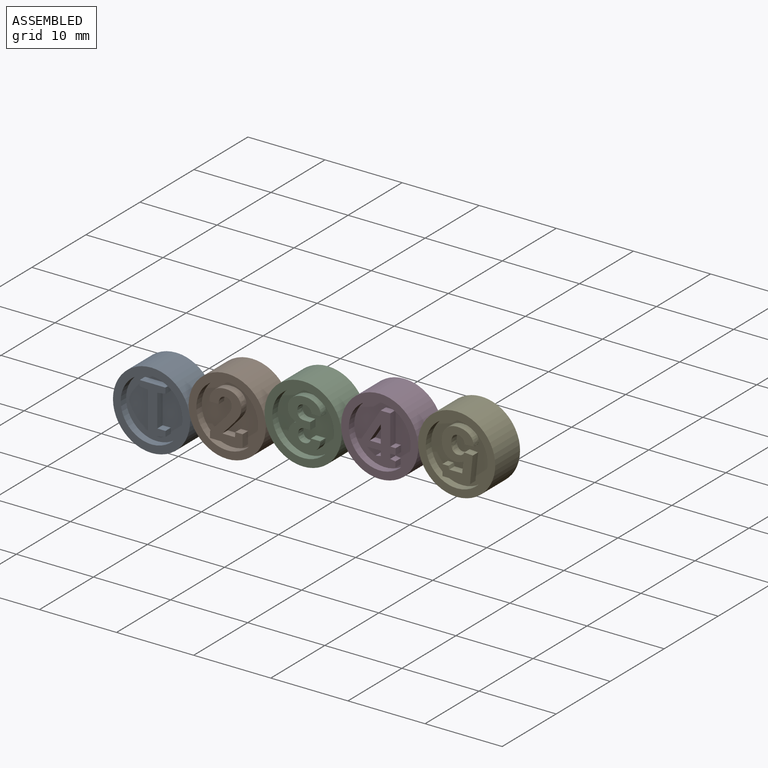
[diagram: assembled view]
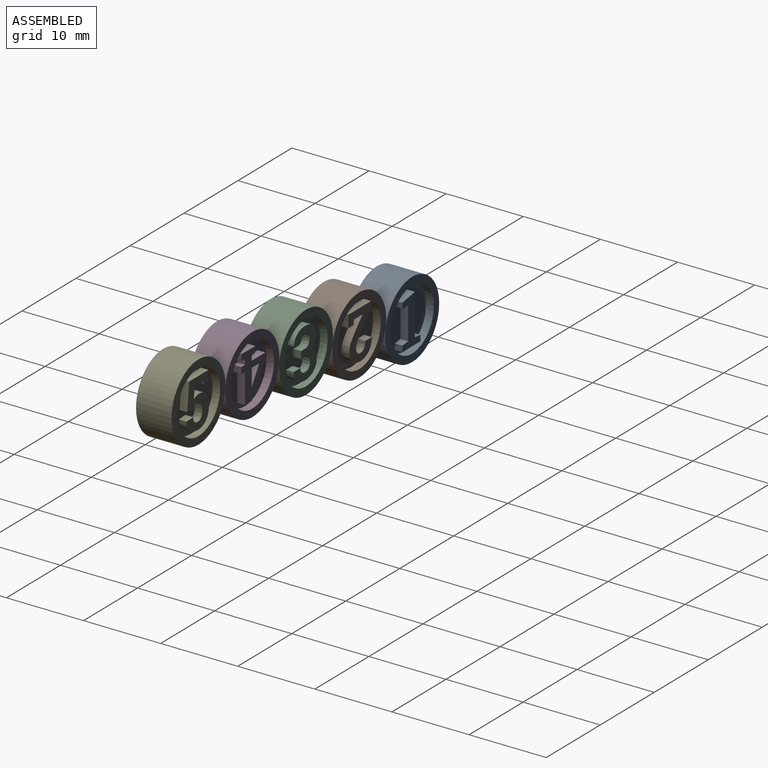
[diagram: assembled view, second angle]
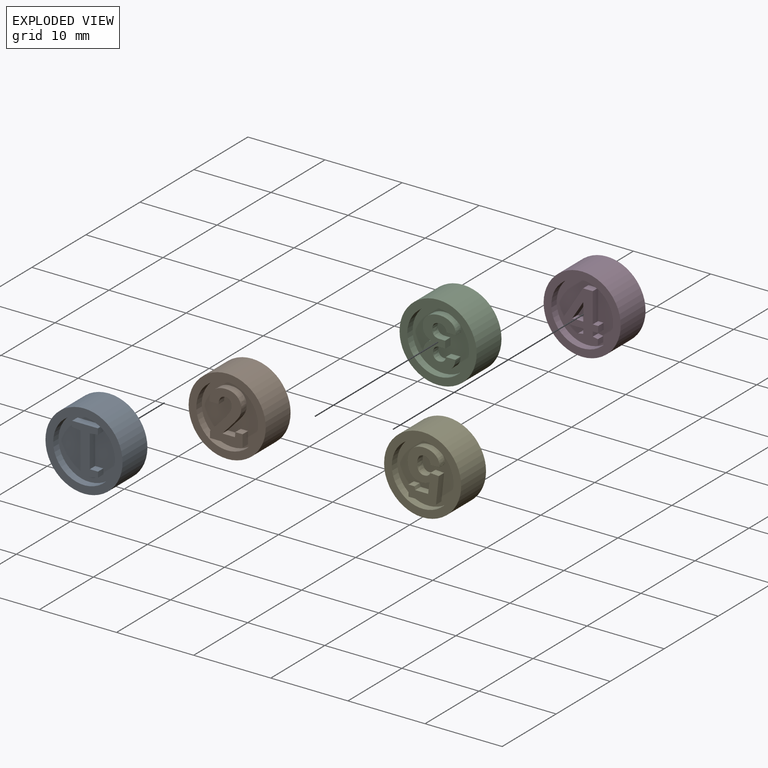
[diagram: exploded view]
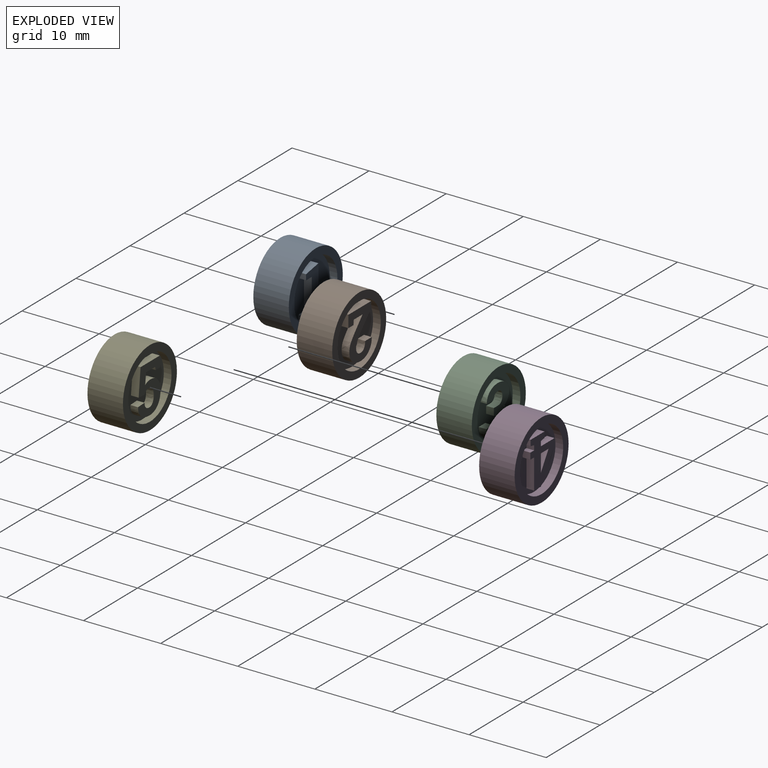
[diagram: exploded view, second angle]
ASSEMBLY  parts=5 mates=4
PART A: 29 faces, bbox 10x4.6x10 mm
  f0: plane 10x10mm, normal (0,1,0), area 28.3mm2, adj f1,f12
  f1: cylinder r=5mm len=10mm, axis (0,-1,0), area 144.5mm2, adj f0,f15
  f2: plane 3.33x1mm, normal (0,0,1), area 3.3mm2, adj f3,f11,f13,f14
  f3: plane 1x0.75mm, normal (-1,0,0), area 0.7mm2, adj f2,f4,f13,f14
  f4: plane 1.05x1mm, normal (-0.12,0,-0.99), area 1.1mm2, adj f3,f5,f13,f14
  f5: plane 4.2x1mm, normal (-1,0,0), area 4.2mm2, adj f4,f6,f13,f14
  f6: plane 1.06x1mm, normal (0,0,1), area 1.1mm2, adj f5,f7,f13,f14
  f7: plane 1x0.71mm, normal (-1,0,0), area 0.7mm2, adj f6,f8,f13,f14
  f8: plane 2.3x1mm, normal (-0.18,0,-0.98), area 2.3mm2, adj f7,f9,f13,f14
  f9: plane 5.33x1mm, normal (1,0,0), area 5.3mm2, adj f8,f10,f13,f14
  f10: plane 1.05x1mm, normal (0.12,0,-0.99), area 1.1mm2, adj f9,f11,f13,f14
  f11: plane 1x0.75mm, normal (1,0,0), area 0.7mm2, adj f2,f10,f13,f14
  f12: cylinder r=4mm len=8mm, axis (0,1,0), area 25.1mm2, adj f0,f13
  f13: plane 8x8mm, normal (0,1,0), area 40.2mm2, adj f2,f3,f4,f5,f6,f7,f8,f9
  f14: plane 6.2x3.35mm, normal (0,1,0), area 10.1mm2, adj f2,f3,f4,f5,f6,f7,f8,f9
  f15: plane 10x10mm, normal (0,-1,0), area 28.3mm2, adj f1,f26
  f16: plane 3.33x1mm, normal (0,0,-1), area 3.3mm2, adj f17,f25,f27,f28
  f17: plane 1x0.75mm, normal (-1,0,0), area 0.7mm2, adj f16,f18,f27,f28
  f18: plane 1.05x1mm, normal (-0.12,0,0.99), area 1.1mm2, adj f17,f19,f27,f28
  f19: plane 4.2x1mm, normal (-1,0,0), area 4.2mm2, adj f18,f20,f27,f28
  f20: plane 1.06x1mm, normal (0,0,-1), area 1.1mm2, adj f19,f21,f27,f28
  f21: plane 1x0.71mm, normal (-1,0,0), area 0.7mm2, adj f20,f22,f27,f28
  f22: plane 2.3x1mm, normal (-0.18,0,0.98), area 2.3mm2, adj f21,f23,f27,f28
  f23: plane 5.33x1mm, normal (1,0,0), area 5.3mm2, adj f22,f24,f27,f28
  f24: plane 1.05x1mm, normal (0.12,0,0.99), area 1.1mm2, adj f23,f25,f27,f28
  f25: plane 1x0.75mm, normal (1,0,0), area 0.7mm2, adj f16,f24,f27,f28
  f26: cylinder r=4mm len=8mm, axis (0,-1,0), area 25.1mm2, adj f15,f27
  f27: plane 8x8mm, normal (0,-1,0), area 40.2mm2, adj f16,f17,f18,f19,f20,f21,f22,f23
  f28: plane 6.2x3.35mm, normal (0,-1,0), area 10.1mm2, adj f16,f17,f18,f19,f20,f21,f22,f23
PART B: 55 faces, bbox 10x4.6x10 mm
  f0: plane 10x10mm, normal (0,1,0), area 28.3mm2, adj f1,f25
  f1: cylinder r=5mm len=10mm, axis (0,-1,0), area 144.5mm2, adj f0,f28
  f2: plane 1.57x1mm, normal (1,0,0), area 1.6mm2, adj f3,f24,f26,f27
  f3: plane 4.23x1mm, normal (0,0,1), area 4.2mm2, adj f2,f4,f26,f27
  f4: plane 1x0.81mm, normal (-1,0,0), area 0.8mm2, adj f3,f5,f26,f27
  f5: plane 2.15x2.01mm, normal (-0.73,0,-0.68), area 2.9mm2, adj f4,f6,f26,f27
  f6: extruded ~1x0.84mm, area 1mm2, adj f5,f7,f26,f27
  f7: extruded ~1x0.64mm, area 0.7mm2, adj f6,f8,f26,f27
  f8: extruded ~1x0.64mm, area 0.7mm2, adj f7,f9,f26,f27
  f9: extruded ~1x0.6mm, area 0.7mm2, adj f8,f10,f26,f27
  f10: extruded ~1x0.65mm, area 0.7mm2, adj f9,f11,f26,f27
  f11: extruded ~1x0.78mm, area 0.8mm2, adj f10,f12,f26,f27
  f12: plane 1.21x1mm, normal (0,0,1), area 1.2mm2, adj f11,f13,f26,f27
  f13: plane 1x0.03mm, normal (-0.94,0,0.35), area 0mm2, adj f12,f14,f26,f27
  f14: extruded ~1.42x1mm, area 1.6mm2, adj f13,f15,f26,f27
  f15: extruded ~1.54x1mm, area 1.7mm2, adj f14,f16,f26,f27
  f16: extruded ~1.51x1mm, area 1.6mm2, adj f15,f17,f26,f27
  f17: extruded ~1.33x1mm, area 1.5mm2, adj f16,f18,f26,f27
  f18: extruded ~1.04x1mm, area 1.1mm2, adj f17,f19,f26,f27
  f19: extruded ~1.24x1.02mm, area 1.6mm2, adj f18,f20,f26,f27
  f20: plane 1.2x1.1mm, normal (0.74,0,0.68), area 1.6mm2, adj f19,f21,f26,f27
  f21: plane 1x0.02mm, normal (0.94,0,-0.35), area 0mm2, adj f20,f22,f26,f27
  f22: plane 1.61x1mm, normal (0,0,-1), area 1.6mm2, adj f21,f23,f26,f27
  f23: plane 1x0.61mm, normal (-1,0,-0.08), area 0.6mm2, adj f22,f24,f26,f27
  f24: plane 1x0.94mm, normal (0,0,-1), area 0.9mm2, adj f2,f23,f26,f27
  f25: cylinder r=4mm len=8mm, axis (0,1,0), area 25.1mm2, adj f0,f26
  f26: plane 8x8mm, normal (0,1,0), area 35.6mm2, adj f2,f3,f4,f5,f6,f7,f8,f9
  f27: plane 6.29x4.35mm, normal (0,1,0), area 14.7mm2, adj f2,f3,f4,f5,f6,f7,f8,f9
  f28: plane 10x10mm, normal (0,-1,0), area 28.3mm2, adj f1,f52
  f29: plane 1.57x1mm, normal (1,0,0), area 1.6mm2, adj f30,f51,f53,f54
  f30: plane 4.23x1mm, normal (0,0,-1), area 4.2mm2, adj f29,f31,f53,f54
  f31: plane 1x0.81mm, normal (-1,0,0), area 0.8mm2, adj f30,f32,f53,f54
  f32: plane 2.15x2.01mm, normal (-0.73,0,0.68), area 2.9mm2, adj f31,f33,f53,f54
  f33: extruded ~1x0.84mm, area 1mm2, adj f32,f34,f53,f54
  f34: extruded ~1x0.64mm, area 0.7mm2, adj f33,f35,f53,f54
  f35: extruded ~1x0.64mm, area 0.7mm2, adj f34,f36,f53,f54
  f36: extruded ~1x0.6mm, area 0.7mm2, adj f35,f37,f53,f54
  f37: extruded ~1x0.65mm, area 0.7mm2, adj f36,f38,f53,f54
  f38: extruded ~1x0.78mm, area 0.8mm2, adj f37,f39,f53,f54
  f39: plane 1.21x1mm, normal (0,0,-1), area 1.2mm2, adj f38,f40,f53,f54
  f40: plane 1x0.03mm, normal (-0.94,0,-0.35), area 0mm2, adj f39,f41,f53,f54
  f41: extruded ~1.42x1mm, area 1.6mm2, adj f40,f42,f53,f54
  f42: extruded ~1.54x1mm, area 1.7mm2, adj f41,f43,f53,f54
  f43: extruded ~1.51x1mm, area 1.6mm2, adj f42,f44,f53,f54
  f44: extruded ~1.33x1mm, area 1.5mm2, adj f43,f45,f53,f54
  f45: extruded ~1.04x1mm, area 1.1mm2, adj f44,f46,f53,f54
  f46: extruded ~1.24x1.02mm, area 1.6mm2, adj f45,f47,f53,f54
  f47: plane 1.2x1.1mm, normal (0.74,0,-0.68), area 1.6mm2, adj f46,f48,f53,f54
  f48: plane 1x0.02mm, normal (0.94,0,0.35), area 0mm2, adj f47,f49,f53,f54
  f49: plane 1.61x1mm, normal (0,0,1), area 1.6mm2, adj f48,f50,f53,f54
  f50: plane 1x0.61mm, normal (-1,0,0.08), area 0.6mm2, adj f49,f51,f53,f54
  f51: plane 1x0.94mm, normal (0,0,1), area 0.9mm2, adj f29,f50,f53,f54
  f52: cylinder r=4mm len=8mm, axis (0,-1,0), area 25.1mm2, adj f28,f53
  f53: plane 8x8mm, normal (0,-1,0), area 35.6mm2, adj f29,f30,f31,f32,f33,f34,f35,f36
  f54: plane 6.29x4.35mm, normal (0,-1,0), area 14.7mm2, adj f29,f30,f31,f32,f33,f34,f35,f36
PART C: 71 faces, bbox 10x4.6x10 mm
  f0: plane 10x10mm, normal (0,-1,0), area 28.3mm2, adj f1,f33
  f1: cylinder r=5mm len=10mm, axis (0,1,0), area 144.5mm2, adj f0,f36
  f2: plane 1x0.7mm, normal (0,0,-1), area 0.7mm2, adj f3,f32,f34,f35
  f3: plane 1x0.93mm, normal (-1,0,0), area 0.9mm2, adj f2,f4,f34,f35
  f4: plane 1x0.7mm, normal (0,0,1), area 0.7mm2, adj f3,f5,f34,f35
  f5: extruded ~1x0.66mm, area 0.7mm2, adj f4,f6,f34,f35
  f6: extruded ~1x0.64mm, area 0.7mm2, adj f5,f7,f34,f35
  f7: extruded ~1x0.6mm, area 0.7mm2, adj f6,f8,f34,f35
  f8: extruded ~1x0.62mm, area 0.7mm2, adj f7,f9,f34,f35
  f9: extruded ~1x0.59mm, area 0.6mm2, adj f8,f10,f34,f35
  f10: extruded ~1x0.54mm, area 0.6mm2, adj f9,f11,f34,f35
  f11: plane 1.2x1mm, normal (0,0,-1), area 1.2mm2, adj f10,f12,f34,f35
  f12: plane 1x0.03mm, normal (-0.94,0,-0.35), area 0mm2, adj f11,f13,f34,f35
  f13: extruded ~1.2x1mm, area 1.4mm2, adj f12,f14,f34,f35
  f14: extruded ~1.45x1mm, area 1.6mm2, adj f13,f15,f34,f35
  f15: extruded ~1.54x1mm, area 1.6mm2, adj f14,f16,f34,f35
  f16: extruded ~1.31x1mm, area 1.5mm2, adj f15,f17,f34,f35
  f17: extruded ~1x0.77mm, area 0.8mm2, adj f16,f18,f34,f35
  f18: extruded ~1x0.7mm, area 0.9mm2, adj f17,f19,f34,f35
  f19: extruded ~1x0.79mm, area 1mm2, adj f18,f20,f34,f35
  f20: extruded ~1x0.88mm, area 0.9mm2, adj f19,f21,f34,f35
  f21: extruded ~1.34x1mm, area 1.5mm2, adj f20,f22,f34,f35
  f22: extruded ~1.59x1mm, area 1.7mm2, adj f21,f23,f34,f35
  f23: extruded ~1.48x1mm, area 1.6mm2, adj f22,f24,f34,f35
  f24: extruded ~1.29x1mm, area 1.5mm2, adj f23,f25,f34,f35
  f25: plane 1x0.03mm, normal (-0.95,0,0.3), area 0mm2, adj f24,f26,f34,f35
  f26: plane 1.21x1mm, normal (0,0,1), area 1.2mm2, adj f25,f27,f34,f35
  f27: extruded ~1x0.59mm, area 0.7mm2, adj f26,f28,f34,f35
  f28: extruded ~1x0.65mm, area 0.7mm2, adj f27,f29,f34,f35
  f29: extruded ~1x0.68mm, area 0.7mm2, adj f28,f30,f34,f35
  f30: extruded ~1x0.65mm, area 0.7mm2, adj f29,f31,f34,f35
  f31: extruded ~1x0.72mm, area 0.8mm2, adj f30,f32,f34,f35
  f32: extruded ~1x0.72mm, area 0.8mm2, adj f2,f31,f34,f35
  f33: cylinder r=4mm len=8mm, axis (0,-1,0), area 25.1mm2, adj f0,f34
  f34: plane 8x8mm, normal (0,-1,0), area 36mm2, adj f2,f3,f4,f5,f6,f7,f8,f9
  f35: plane 6.38x4.31mm, normal (0,-1,0), area 14.2mm2, adj f2,f3,f4,f5,f6,f7,f8,f9
  f36: plane 10x10mm, normal (0,1,0), area 28.3mm2, adj f1,f68
  f37: plane 1x0.7mm, normal (0,0,1), area 0.7mm2, adj f38,f67,f69,f70
  f38: plane 1x0.93mm, normal (-1,0,0), area 0.9mm2, adj f37,f39,f69,f70
  f39: plane 1x0.7mm, normal (0,0,-1), area 0.7mm2, adj f38,f40,f69,f70
  f40: extruded ~1x0.66mm, area 0.7mm2, adj f39,f41,f69,f70
  f41: extruded ~1x0.64mm, area 0.7mm2, adj f40,f42,f69,f70
  f42: extruded ~1x0.6mm, area 0.7mm2, adj f41,f43,f69,f70
  f43: extruded ~1x0.62mm, area 0.7mm2, adj f42,f44,f69,f70
  f44: extruded ~1x0.59mm, area 0.6mm2, adj f43,f45,f69,f70
  f45: extruded ~1x0.54mm, area 0.6mm2, adj f44,f46,f69,f70
  f46: plane 1.2x1mm, normal (0,0,1), area 1.2mm2, adj f45,f47,f69,f70
  f47: plane 1x0.03mm, normal (-0.94,0,0.35), area 0mm2, adj f46,f48,f69,f70
  f48: extruded ~1.2x1mm, area 1.4mm2, adj f47,f49,f69,f70
  f49: extruded ~1.45x1mm, area 1.6mm2, adj f48,f50,f69,f70
  f50: extruded ~1.54x1mm, area 1.6mm2, adj f49,f51,f69,f70
  f51: extruded ~1.31x1mm, area 1.5mm2, adj f50,f52,f69,f70
  f52: extruded ~1x0.77mm, area 0.8mm2, adj f51,f53,f69,f70
  f53: extruded ~1x0.7mm, area 0.9mm2, adj f52,f54,f69,f70
  f54: extruded ~1x0.79mm, area 1mm2, adj f53,f55,f69,f70
  f55: extruded ~1x0.88mm, area 0.9mm2, adj f54,f56,f69,f70
  f56: extruded ~1.34x1mm, area 1.5mm2, adj f55,f57,f69,f70
  f57: extruded ~1.59x1mm, area 1.7mm2, adj f56,f58,f69,f70
  f58: extruded ~1.48x1mm, area 1.6mm2, adj f57,f59,f69,f70
  f59: extruded ~1.29x1mm, area 1.5mm2, adj f58,f60,f69,f70
  f60: plane 1x0.03mm, normal (-0.95,0,-0.3), area 0mm2, adj f59,f61,f69,f70
  f61: plane 1.21x1mm, normal (0,0,-1), area 1.2mm2, adj f60,f62,f69,f70
  f62: extruded ~1x0.59mm, area 0.7mm2, adj f61,f63,f69,f70
  f63: extruded ~1x0.65mm, area 0.7mm2, adj f62,f64,f69,f70
  f64: extruded ~1x0.68mm, area 0.7mm2, adj f63,f65,f69,f70
  f65: extruded ~1x0.65mm, area 0.7mm2, adj f64,f66,f69,f70
  f66: extruded ~1x0.72mm, area 0.8mm2, adj f65,f67,f69,f70
  f67: extruded ~1x0.72mm, area 0.8mm2, adj f37,f66,f69,f70
  f68: cylinder r=4mm len=8mm, axis (0,1,0), area 25.1mm2, adj f36,f69
  f69: plane 8x8mm, normal (0,1,0), area 36mm2, adj f37,f38,f39,f40,f41,f42,f43,f44
  f70: plane 6.38x4.31mm, normal (0,1,0), area 14.2mm2, adj f37,f38,f39,f40,f41,f42,f43,f44
PART D: 51 faces, bbox 10x4.6x10 mm
  f0: plane 10x10mm, normal (0,1,0), area 28.3mm2, adj f1,f17
  f1: cylinder r=5mm len=10mm, axis (0,-1,0), area 144.5mm2, adj f0,f26
  f2: plane 1.25x1mm, normal (0,0,-1), area 1.3mm2, adj f3,f16,f18,f19
  f3: plane 3.89x1mm, normal (1,0,0), area 3.9mm2, adj f2,f4,f18,f19
  f4: plane 1x0.7mm, normal (0,0,-1), area 0.7mm2, adj f3,f5,f18,f19
  f5: plane 1x0.83mm, normal (1,0,0), area 0.8mm2, adj f4,f6,f18,f19
  f6: plane 1x0.7mm, normal (0,0,1), area 0.7mm2, adj f5,f7,f18,f19
  f7: plane 1x0.61mm, normal (1,0,0), area 0.6mm2, adj f6,f8,f18,f19
  f8: plane 1x0.66mm, normal (0.19,0,-0.98), area 0.7mm2, adj f7,f9,f18,f19
  f9: plane 1x0.75mm, normal (1,0,0), area 0.7mm2, adj f8,f10,f18,f19
  f10: plane 2.56x1mm, normal (0,0,1), area 2.6mm2, adj f9,f11,f18,f19
  f11: plane 1x0.75mm, normal (-1,0,0), area 0.7mm2, adj f10,f12,f18,f19
  f12: plane 1x0.67mm, normal (-0.19,0,-0.98), area 0.7mm2, adj f11,f13,f18,f19
  f13: plane 1x0.61mm, normal (-1,0,0), area 0.6mm2, adj f12,f14,f18,f19
  f14: plane 2.53x1mm, normal (0,0,1), area 2.5mm2, adj f13,f15,f18,f19
  f15: plane 1x0.61mm, normal (-1,0,0.1), area 0.6mm2, adj f14,f16,f18,f19
  f16: plane 4.11x2.58mm, normal (-0.85,0,-0.53), area 4.8mm2, adj f2,f15,f18,f19
  f17: cylinder r=4mm len=8mm, axis (0,1,0), area 25.1mm2, adj f0,f18
  f18: plane 8x8mm, normal (0,1,0), area 34mm2, adj f2,f3,f4,f5,f6,f7,f8,f9
  f19: plane 6.2x4.53mm, normal (0,1,0), area 14.6mm2, adj f2,f3,f4,f5,f6,f7,f8,f9
  f20: plane 1x0.18mm, normal (0.87,0,0.49), area 0.2mm2, adj f19,f21,f24,f25
  f21: plane 2.06x1.3mm, normal (0.85,0,0.53), area 2.4mm2, adj f19,f20,f22,f25
  f22: plane 1.43x1mm, normal (0,0,-1), area 1.4mm2, adj f19,f21,f23,f25
  f23: plane 2.23x1mm, normal (-1,0,0), area 2.2mm2, adj f19,f22,f24,f25
  f24: plane 1x0.03mm, normal (-0.35,0,0.94), area 0mm2, adj f19,f20,f23,f25
  f25: plane 2.24x1.43mm, normal (0,1,0), area 1.6mm2, adj f20,f21,f22,f23,f24
  f26: plane 10x10mm, normal (0,-1,0), area 28.3mm2, adj f1,f42
  f27: plane 1.25x1mm, normal (0,0,1), area 1.3mm2, adj f28,f41,f43,f44
  f28: plane 3.89x1mm, normal (1,0,0), area 3.9mm2, adj f27,f29,f43,f44
  f29: plane 1x0.7mm, normal (0,0,1), area 0.7mm2, adj f28,f30,f43,f44
  f30: plane 1x0.83mm, normal (1,0,0), area 0.8mm2, adj f29,f31,f43,f44
  f31: plane 1x0.7mm, normal (0,0,-1), area 0.7mm2, adj f30,f32,f43,f44
  f32: plane 1x0.61mm, normal (1,0,0), area 0.6mm2, adj f31,f33,f43,f44
  f33: plane 1x0.66mm, normal (0.19,0,0.98), area 0.7mm2, adj f32,f34,f43,f44
  f34: plane 1x0.75mm, normal (1,0,0), area 0.7mm2, adj f33,f35,f43,f44
  f35: plane 2.56x1mm, normal (0,0,-1), area 2.6mm2, adj f34,f36,f43,f44
  f36: plane 1x0.75mm, normal (-1,0,0), area 0.7mm2, adj f35,f37,f43,f44
  f37: plane 1x0.67mm, normal (-0.19,0,0.98), area 0.7mm2, adj f36,f38,f43,f44
  f38: plane 1x0.61mm, normal (-1,0,0), area 0.6mm2, adj f37,f39,f43,f44
  f39: plane 2.53x1mm, normal (0,0,-1), area 2.5mm2, adj f38,f40,f43,f44
  f40: plane 1x0.61mm, normal (-1,0,-0.1), area 0.6mm2, adj f39,f41,f43,f44
  f41: plane 4.11x2.58mm, normal (-0.85,0,0.53), area 4.8mm2, adj f27,f40,f43,f44
  f42: cylinder r=4mm len=8mm, axis (0,-1,0), area 25.1mm2, adj f26,f43
  f43: plane 8x8mm, normal (0,-1,0), area 34mm2, adj f27,f28,f29,f30,f31,f32,f33,f34
  f44: plane 6.2x4.53mm, normal (0,-1,0), area 14.6mm2, adj f27,f28,f29,f30,f31,f32,f33,f34
  f45: plane 1x0.18mm, normal (0.87,0,-0.49), area 0.2mm2, adj f44,f46,f49,f50
  f46: plane 2.06x1.3mm, normal (0.85,0,-0.53), area 2.4mm2, adj f44,f45,f47,f50
  f47: plane 1.43x1mm, normal (0,0,1), area 1.4mm2, adj f44,f46,f48,f50
  f48: plane 2.23x1mm, normal (-1,0,0), area 2.2mm2, adj f44,f47,f49,f50
  f49: plane 1x0.03mm, normal (-0.35,0,-0.94), area 0mm2, adj f44,f45,f48,f50
  f50: plane 2.24x1.43mm, normal (0,-1,0), area 1.6mm2, adj f45,f46,f47,f48,f49
PART E: 61 faces, bbox 10x4.6x10 mm
  f0: plane 10x10mm, normal (0,1,0), area 28.3mm2, adj f1,f28
  f1: cylinder r=5mm len=10mm, axis (0,-1,0), area 144.5mm2, adj f0,f31
  f2: plane 1.41x1mm, normal (1,0,0), area 1.4mm2, adj f3,f27,f29,f30
  f3: plane 1x0.77mm, normal (0,0,1), area 0.8mm2, adj f2,f4,f29,f30
  f4: plane 1x0.42mm, normal (-0.97,0,0.26), area 0.4mm2, adj f3,f5,f29,f30
  f5: plane 1.67x1mm, normal (0,0,1), area 1.7mm2, adj f4,f6,f29,f30
  f6: plane 1.43x1mm, normal (0.99,0,0.12), area 1.4mm2, adj f5,f7,f29,f30
  f7: extruded ~1x0.42mm, area 0.5mm2, adj f6,f8,f29,f30
  f8: extruded ~1x0.54mm, area 0.5mm2, adj f7,f9,f29,f30
  f9: extruded ~1.38x1mm, area 1.5mm2, adj f8,f10,f29,f30
  f10: extruded ~1.54x1mm, area 1.7mm2, adj f9,f11,f29,f30
  f11: extruded ~1.49x1mm, area 1.6mm2, adj f10,f12,f29,f30
  f12: extruded ~1.55x1mm, area 1.7mm2, adj f11,f13,f29,f30
  f13: extruded ~1.46x1mm, area 1.6mm2, adj f12,f14,f29,f30
  f14: extruded ~1.28x1mm, area 1.5mm2, adj f13,f15,f29,f30
  f15: plane 1x0.02mm, normal (-0.91,0,-0.42), area 0mm2, adj f14,f16,f29,f30
  f16: plane 1.19x1mm, normal (-0.05,0,-1), area 1.2mm2, adj f15,f17,f29,f30
  f17: extruded ~1x0.65mm, area 0.7mm2, adj f16,f18,f29,f30
  f18: extruded ~1x0.61mm, area 0.7mm2, adj f17,f19,f29,f30
  f19: extruded ~1x0.64mm, area 0.7mm2, adj f18,f20,f29,f30
  f20: extruded ~1x0.8mm, area 0.8mm2, adj f19,f21,f29,f30
  f21: extruded ~1x0.86mm, area 0.9mm2, adj f20,f22,f29,f30
  f22: extruded ~1x0.66mm, area 0.8mm2, adj f21,f23,f29,f30
  f23: extruded ~1x0.54mm, area 0.6mm2, adj f22,f24,f29,f30
  f24: extruded ~1x0.36mm, area 0.5mm2, adj f23,f25,f29,f30
  f25: plane 1.1x1mm, normal (-0.07,0,1), area 1.1mm2, adj f24,f26,f29,f30
  f26: plane 3.45x1mm, normal (-0.99,0,-0.1), area 3.5mm2, adj f25,f27,f29,f30
  f27: plane 3.57x1mm, normal (0,0,-1), area 3.6mm2, adj f2,f26,f29,f30
  f28: cylinder r=4mm len=8mm, axis (0,1,0), area 25.1mm2, adj f0,f29
  f29: plane 8x8mm, normal (0,1,0), area 34.9mm2, adj f2,f3,f4,f5,f6,f7,f8,f9
  f30: plane 6.29x4.16mm, normal (0,1,0), area 15.4mm2, adj f2,f3,f4,f5,f6,f7,f8,f9
  f31: plane 10x10mm, normal (0,-1,0), area 28.3mm2, adj f1,f58
  f32: plane 1.41x1mm, normal (1,0,0), area 1.4mm2, adj f33,f57,f59,f60
  f33: plane 1x0.77mm, normal (0,0,-1), area 0.8mm2, adj f32,f34,f59,f60
  f34: plane 1x0.42mm, normal (-0.97,0,-0.26), area 0.4mm2, adj f33,f35,f59,f60
  f35: plane 1.67x1mm, normal (0,0,-1), area 1.7mm2, adj f34,f36,f59,f60
  f36: plane 1.43x1mm, normal (0.99,0,-0.12), area 1.4mm2, adj f35,f37,f59,f60
  f37: extruded ~1x0.42mm, area 0.5mm2, adj f36,f38,f59,f60
  f38: extruded ~1x0.54mm, area 0.5mm2, adj f37,f39,f59,f60
  f39: extruded ~1.38x1mm, area 1.5mm2, adj f38,f40,f59,f60
  f40: extruded ~1.54x1mm, area 1.7mm2, adj f39,f41,f59,f60
  f41: extruded ~1.49x1mm, area 1.6mm2, adj f40,f42,f59,f60
  f42: extruded ~1.55x1mm, area 1.7mm2, adj f41,f43,f59,f60
  f43: extruded ~1.46x1mm, area 1.6mm2, adj f42,f44,f59,f60
  f44: extruded ~1.28x1mm, area 1.5mm2, adj f43,f45,f59,f60
  f45: plane 1x0.02mm, normal (-0.91,0,0.42), area 0mm2, adj f44,f46,f59,f60
  f46: plane 1.19x1mm, normal (-0.05,0,1), area 1.2mm2, adj f45,f47,f59,f60
  f47: extruded ~1x0.65mm, area 0.7mm2, adj f46,f48,f59,f60
  f48: extruded ~1x0.61mm, area 0.7mm2, adj f47,f49,f59,f60
  f49: extruded ~1x0.64mm, area 0.7mm2, adj f48,f50,f59,f60
  f50: extruded ~1x0.8mm, area 0.8mm2, adj f49,f51,f59,f60
  f51: extruded ~1x0.86mm, area 0.9mm2, adj f50,f52,f59,f60
  f52: extruded ~1x0.66mm, area 0.8mm2, adj f51,f53,f59,f60
  f53: extruded ~1x0.54mm, area 0.6mm2, adj f52,f54,f59,f60
  f54: extruded ~1x0.36mm, area 0.5mm2, adj f53,f55,f59,f60
  f55: plane 1.1x1mm, normal (-0.07,0,-1), area 1.1mm2, adj f54,f56,f59,f60
  f56: plane 3.45x1mm, normal (-0.99,0,0.1), area 3.5mm2, adj f55,f57,f59,f60
  f57: plane 3.57x1mm, normal (0,0,1), area 3.6mm2, adj f32,f56,f59,f60
  f58: cylinder r=4mm len=8mm, axis (0,-1,0), area 25.1mm2, adj f31,f59
  f59: plane 8x8mm, normal (0,-1,0), area 34.9mm2, adj f32,f33,f34,f35,f36,f37,f38,f39
  f60: plane 6.29x4.16mm, normal (0,-1,0), area 15.4mm2, adj f32,f33,f34,f35,f36,f37,f38,f39
PLACE A rot(axis=(0,1,0),180deg) t=(-11.87,0,-1.54)mm
PLACE B t=(-14.05,0,0.38)mm
PLACE C rot(axis=(0,-1,0),180deg) t=(31.79,0,2.13)mm
PLACE D t=(-18.28,0,3.32)mm
PLACE E rot(axis=(0,-1,0),180deg) t=(75.71,0,3.9)mm
MATE planar A.f26 <-> B.f52  axis (0,-1,0) through (-11.87,-2.3,-1.54)mm
MATE planar C.f1 <-> D.f42  axis (0,-1,0) through (7.79,-2.3,2.13)mm
MATE planar B.f52 <-> C.f1  axis (0,-1,0) through (-2.05,-2.3,0.38)mm
MATE planar D.f42 <-> E.f58  axis (0,-1,0) through (17.72,-2.3,3.32)mm
